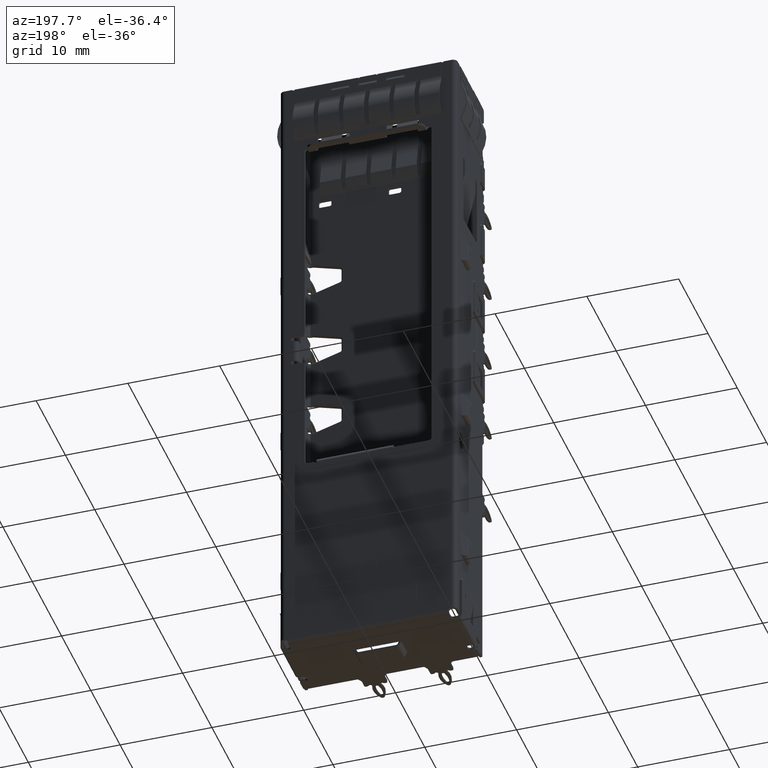
[diagram: clean part render]
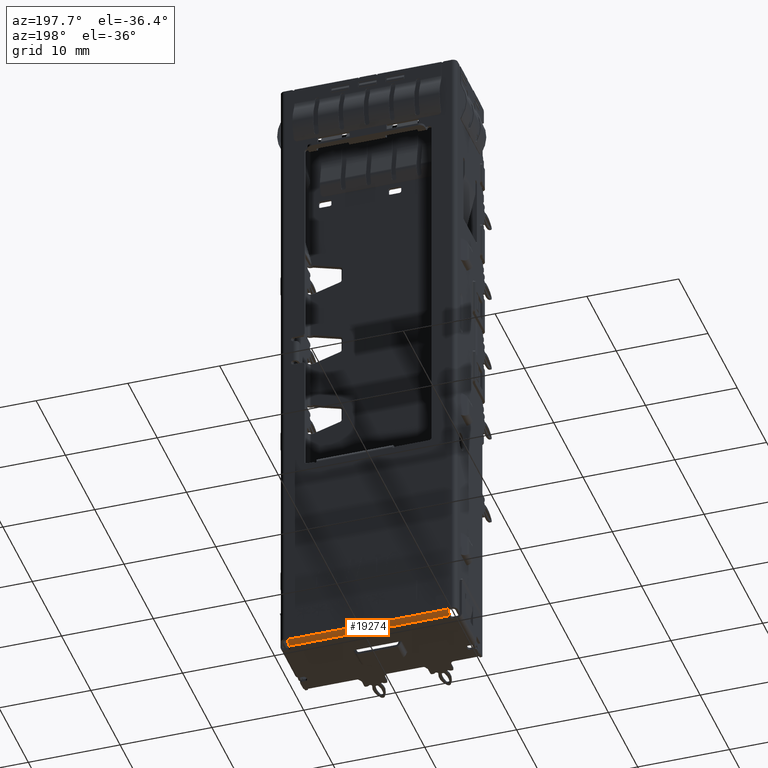
[diagram: same view with one face highlighted and labeled with its STEP entity id]
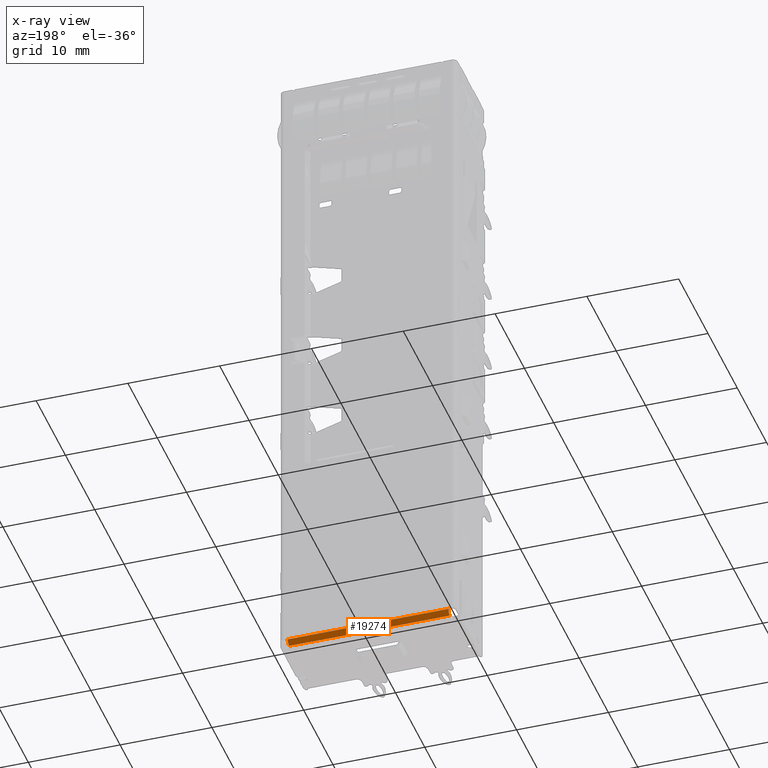
[diagram: x-ray of the same camera — body ghosted, the highlighted face saturated]
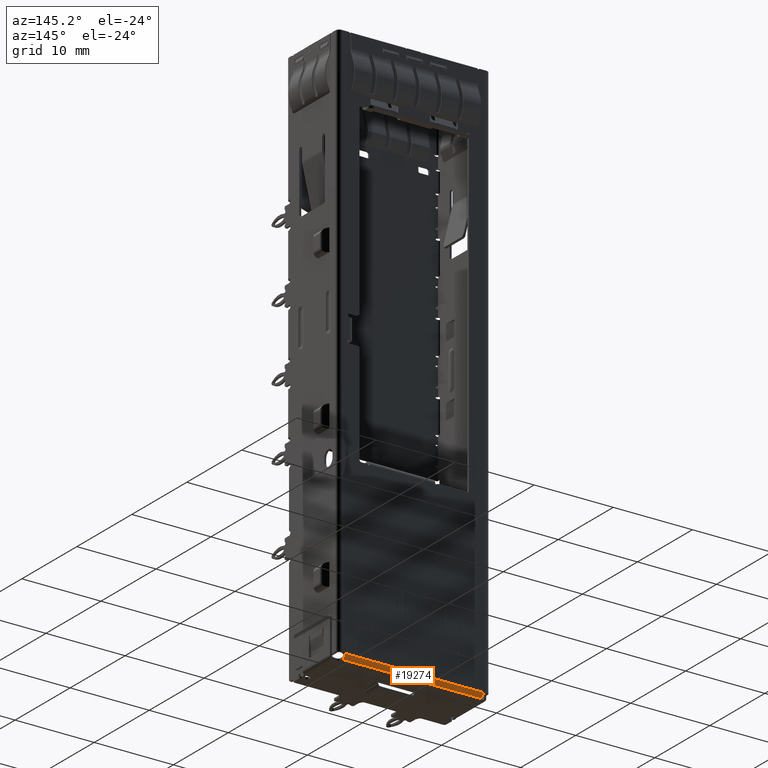
[diagram: same view with one face highlighted and labeled with its STEP entity id]
A machine part, auxiliary view. The second image highlights one B-rep face of the part: STEP entity #19274.
The next image is the same camera in x-ray: the body ghosted, the highlighted face saturated — about 0% of this face is hidden behind the body in this view.
A second angle (auxiliary view) of the same face is appended — the face is thin or edge-on in the first view.
In plain terms, the highlighted cylindrical surface (edge-blend (fillet) strip) has radius 0.5 mm, axis along (1, 0, 0).
Its self-contained STEP definition (entity closure, byte-faithful):
#549 = VERTEX_POINT ( 'NONE', #17878 ) ;
#2409 = VERTEX_POINT ( 'NONE', #47532 ) ;
#2451 = EDGE_CURVE ( 'NONE', #10520, #40088, #29157, .T. ) ;
#4257 = EDGE_CURVE ( 'NONE', #2409, #61815, #56133, .T. ) ;
#4322 = ORIENTED_EDGE ( 'NONE', *, *, #33908, .T. ) ;
#4405 = CARTESIAN_POINT ( 'NONE',  ( 8.798610118340414843, 9.398587165229614016, -70.76766677921615667 ) ) ;
#4618 = CARTESIAN_POINT ( 'NONE',  ( 8.774235278309719277, 9.389628955230261198, -70.82677730804236660 ) ) ;
#6686 = AXIS2_PLACEMENT_3D ( 'NONE', #35962, #15042, #52439 ) ;
#7640 = EDGE_CURVE ( 'NONE', #61815, #10520, #39515, .T. ) ;
#8366 = CARTESIAN_POINT ( 'NONE',  ( -8.750000000000000000, 9.333909588994771411, -70.97344006912199177 ) ) ;
#8599 = CARTESIAN_POINT ( 'NONE',  ( -8.750973596777809504, 9.347543709722950567, -70.94962758302814620 ) ) ;
#10520 = VERTEX_POINT ( 'NONE', #17426 ) ;
#10696 = VECTOR ( 'NONE', #61201, 1000.000000000000000 ) ;
#11375 = DIRECTION ( 'NONE',  ( 1.000000000000000000, 0.0000000000000000000, 0.0000000000000000000 ) ) ;
#13712 = CARTESIAN_POINT ( 'NONE',  ( -8.763647684835166984, 9.380440299812070393, -70.86387646146957309 ) ) ;
#15042 = DIRECTION ( 'NONE',  ( -1.000000000000000000, 0.0000000000000000000, 0.0000000000000000000 ) ) ;
#15318 = CARTESIAN_POINT ( 'NONE',  ( 8.750626015369618926, 9.358553445448087871, -70.93039868047704033 ) ) ;
#15937 = ORIENTED_EDGE ( 'NONE', *, *, #7640, .T. ) ;
#17302 = LINE ( 'NONE', #34411, #10696 ) ;
#17426 = CARTESIAN_POINT ( 'NONE',  ( 8.822019738786169185, 9.400000000000000355, -70.72499999872600540 ) ) ;
#17472 = CARTESIAN_POINT ( 'NONE',  ( -9.125000000000000000, 9.400000000000000355, -70.72499999872600540 ) ) ;
#17878 = CARTESIAN_POINT ( 'NONE',  ( 8.750000000000000000, 8.900000000000000355, -71.22499999872600540 ) ) ;
#19274 = ADVANCED_FACE ( 'NONE', ( #34532 ), #19583, .T. ) ;
#19583 = CYLINDRICAL_SURFACE ( 'NONE', #48880, 0.5000000000000004441 ) ;
#19999 = CARTESIAN_POINT ( 'NONE',  ( 8.822019738786169185, 9.400000000000000355, -70.72499999872600540 ) ) ;
#21596 = CARTESIAN_POINT ( 'NONE',  ( -93.56757799758131000, 8.900000000000000355, -70.72499999872600540 ) ) ;
#21836 = DIRECTION ( 'NONE',  ( 0.0000000000000000000, 0.0000000000000000000, -1.000000000000000000 ) ) ;
#24183 = CARTESIAN_POINT ( 'NONE',  ( -8.759481469531490205, 9.374207599109233513, -70.88386065003629710 ) ) ;
#29157 = B_SPLINE_CURVE_WITH_KNOTS ( 'NONE', 3,
 ( #19999, #62844, #4405, #68239, #52970, #4618, #47295, #58129, #15318, #36031 ),
 .UNSPECIFIED., .F., .F.,
 ( 4, 2, 2, 2, 4 ),
 ( 0.0000000000000000000, 0.2499999999999289457, 0.3749999999998905875, 0.4999999999998522293, 1.000000000000000000 ),
 .UNSPECIFIED. ) ;
#29731 = CARTESIAN_POINT ( 'NONE',  ( -8.822019738786169185, 9.400000000000000355, -70.72499999872600540 ) ) ;
#31803 = ORIENTED_EDGE ( 'NONE', *, *, #36464, .F. ) ;
#33346 = CARTESIAN_POINT ( 'NONE',  ( 8.750000000000000000, 9.333909588994771411, -70.97344006912199177 ) ) ;
#33908 = EDGE_CURVE ( 'NONE', #40088, #549, #34919, .T. ) ;
#34411 = CARTESIAN_POINT ( 'NONE',  ( -9.125000000000000000, 8.900000000000000355, -71.22499999872600540 ) ) ;
#34532 = FACE_OUTER_BOUND ( 'NONE', #39799, .T. ) ;
#34919 = CIRCLE ( 'NONE', #6686, 0.5000000000000004441 ) ;
#35177 = CIRCLE ( 'NONE', #59109, 0.5000000000000004441 ) ;
#35962 = CARTESIAN_POINT ( 'NONE',  ( 8.750000000000000000, 8.900000000000000355, -70.72499999872600540 ) ) ;
#36031 = CARTESIAN_POINT ( 'NONE',  ( 8.750000000000000000, 9.333909588994771411, -70.97344006912199177 ) ) ;
#36464 = EDGE_CURVE ( 'NONE', #61493, #549, #17302, .T. ) ;
#36726 = CARTESIAN_POINT ( 'NONE',  ( -8.822019738786169185, 9.400000000000000355, -70.72499999872600540 ) ) ;
#39515 = LINE ( 'NONE', #17472, #56317 ) ;
#39799 = EDGE_LOOP ( 'NONE', ( #58774, #4322, #31803, #52977, #53337, #15937 ) ) ;
#39810 = CARTESIAN_POINT ( 'NONE',  ( -8.765637547096707394, 9.382772086355538832, -70.85555647549306002 ) ) ;
#40041 = CARTESIAN_POINT ( 'NONE',  ( -8.798312646803308823, 9.400000000000000355, -70.76323852419865545 ) ) ;
#40088 = VERTEX_POINT ( 'NONE', #33346 ) ;
#40509 = CARTESIAN_POINT ( 'NONE',  ( -8.757664413423484007, 9.370616412972658793, -70.89427379981728450 ) ) ;
#43921 = EDGE_CURVE ( 'NONE', #61493, #2409, #35177, .T. ) ;
#45211 = CARTESIAN_POINT ( 'NONE',  ( -8.780510085464710457, 9.395599011290801883, -70.80376366957855794 ) ) ;
#47295 = CARTESIAN_POINT ( 'NONE',  ( 8.771544279563626034, 9.387898209916478720, -70.83486228272239771 ) ) ;
#47532 = CARTESIAN_POINT ( 'NONE',  ( -8.750000000000000000, 9.333909588994771411, -70.97344006912199177 ) ) ;
#48880 = AXIS2_PLACEMENT_3D ( 'NONE', #21596, #11375, #21836 ) ;
#51401 = CARTESIAN_POINT ( 'NONE',  ( -8.750000000000000000, 8.900000000000000355, -70.72499999872600540 ) ) ;
#52439 = DIRECTION ( 'NONE',  ( 0.0000000000000000000, 8.673617379884027899E-14, -1.000000000000000000 ) ) ;
#52970 = CARTESIAN_POINT ( 'NONE',  ( 8.781270701298725001, 9.393225759471228287, -70.80760438532614387 ) ) ;
#52977 = ORIENTED_EDGE ( 'NONE', *, *, #43921, .T. ) ;
#53337 = ORIENTED_EDGE ( 'NONE', *, *, #4257, .T. ) ;
#56133 = B_SPLINE_CURVE_WITH_KNOTS ( 'NONE', 3,
 ( #8366, #8599, #61891, #40509, #24183, #13712, #39810, #45211, #40041, #29731 ),
 .UNSPECIFIED., .F., .F.,
 ( 4, 2, 2, 2, 4 ),
 ( 0.0000000000000000000, 0.2500000000001330047, 0.3750000000001352807, 0.5000000000001375566, 1.000000000000000000 ),
 .UNSPECIFIED. ) ;
#56317 = VECTOR ( 'NONE', #65215, 1000.000000000000000 ) ;
#56795 = DIRECTION ( 'NONE',  ( 1.000000000000000000, 0.0000000000000000000, 0.0000000000000000000 ) ) ;
#58129 = CARTESIAN_POINT ( 'NONE',  ( 8.756826239199956063, 9.375038075755593781, -70.88676829455738471 ) ) ;
#58774 = ORIENTED_EDGE ( 'NONE', *, *, #2451, .T. ) ;
#59109 = AXIS2_PLACEMENT_3D ( 'NONE', #51401, #56795, #62203 ) ;
#61201 = DIRECTION ( 'NONE',  ( 1.000000000000000000, 0.0000000000000000000, 0.0000000000000000000 ) ) ;
#61493 = VERTEX_POINT ( 'NONE', #64416 ) ;
#61815 = VERTEX_POINT ( 'NONE', #36726 ) ;
#61891 = CARTESIAN_POINT ( 'NONE',  ( -8.753011399730901587, 9.358137761767844509, -70.92660233706300232 ) ) ;
#62203 = DIRECTION ( 'NONE',  ( 0.0000000000000000000, 0.0000000000000000000, -1.000000000000000000 ) ) ;
#62844 = CARTESIAN_POINT ( 'NONE',  ( 8.809381051116485395, 9.400000000000003908, -70.74670211307444845 ) ) ;
#64416 = CARTESIAN_POINT ( 'NONE',  ( -8.750000000000000000, 8.900000000000000355, -71.22499999872600540 ) ) ;
#65215 = DIRECTION ( 'NONE',  ( 1.000000000000000000, 0.0000000000000000000, 0.0000000000000000000 ) ) ;
#68239 = CARTESIAN_POINT ( 'NONE',  ( 8.785255351516623179, 9.394777439416570175, -70.79778522605029423 ) ) ;